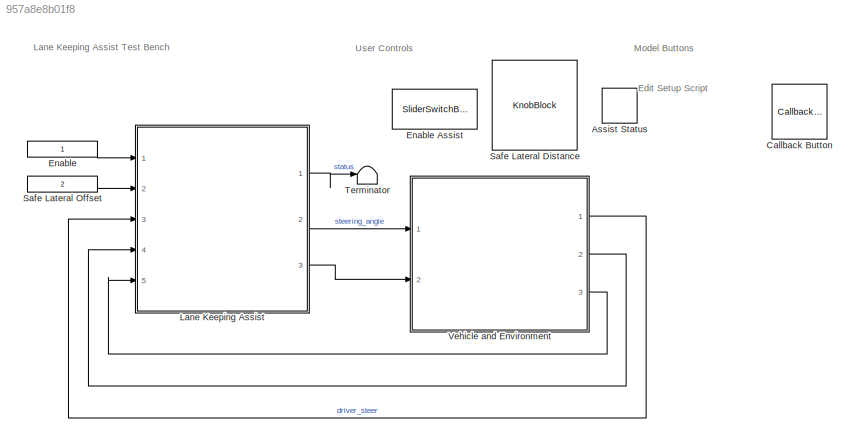
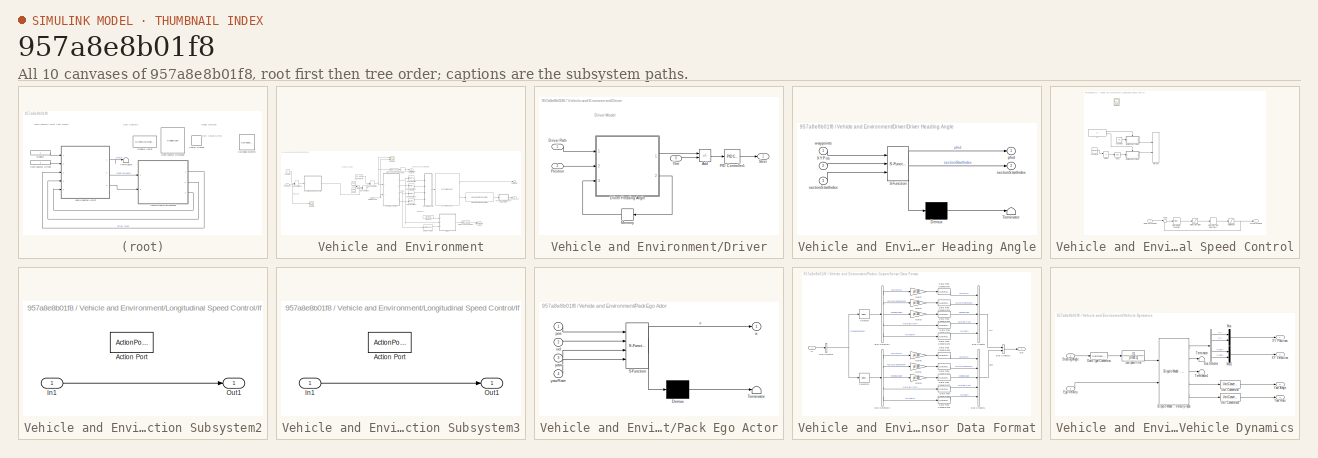
[diagram: thumbnail index - all 10 canvases of the model, root first then tree order]
MODEL slx_957a8e8b01f8
KIND model
CONFIG AbsTol = auto
CONFIG EnableMultiTasking = off
CONFIG FixedStep = auto
CONFIG MaxStep = auto
CONFIG MinStep = auto
CONFIG PostLoadFcn = helperLKASetUpVarying
CONFIG RelTol = 1e-3
CONFIG SampleTimeConstraint = Unconstrained
CONFIG SolverName = VariableStepAuto
CONFIG StartTime = 0.0
CONFIG StopTime = simStopTime
BLOCK [LampBlock] Assist Status
  LabelPosition = Hide
BLOCK [CallbackButton] Callback Button
  ButtonText = ?
  ClickFcn = exampleID = 'LaneKeepingAssistWithLaneDetectionExample';\nexampleName = 'lane-keeping-assist-with-lane-detection.html';\nif license('test','automated_driving_toolbox') && ~isempty(ver('driving'))\n    helpview('driving',exampleID);\nelseif license('test','MPC_Toolbox') && ~isempty(ver('mpc'))\n    helpview('mpc',exampleID);\nelse\n    web(fullfile('https://www.mathworks.com/help','driving','examples',exa...<+44ch>
BLOCK [Constant] Enable
  OutDataTypeStr = Inherit: Inherit via back propagation
BLOCK [SliderSwitchBlock] Enable Assist
  LabelPosition = Hide
BLOCK [ModelReference] Lane Keeping Assist
  CodeInterface = Top model
  ModelNameDialog = LKARefMdl.slx
  ModelReferenceVersion = 1.434
  Ports = [5, 3]
BLOCK [KnobBlock] Safe Lateral Distance
  LabelPosition = Hide
  ScaleMax = 2
  TickInterval = 0.5
BLOCK [Constant] Safe Lateral Offset
  OutDataTypeStr = Inherit: Inherit via back propagation
  Value = 2
BLOCK [Terminator] Terminator
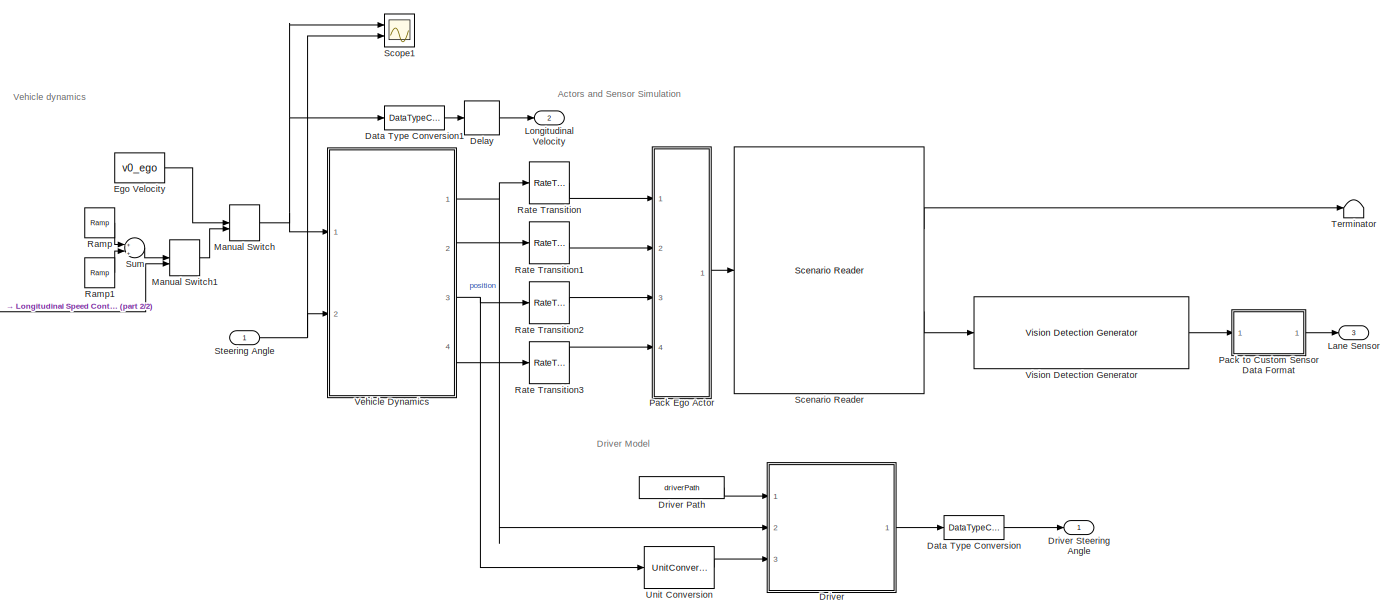
[diagram: Vehicle and Environment - part 1/2, most of the canvas]
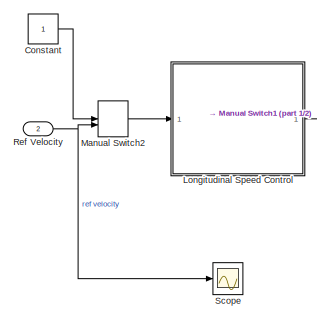
[diagram: Vehicle and Environment - part 2/2, middle left region]
BLOCK [SubSystem] Vehicle and Environment
  Ports = [2, 3]
  RequestExecContextInheritance = off
BLOCK [Constant] Vehicle and Environment/Constant
BLOCK [DataTypeConversion] Vehicle and Environment/Data Type Conversion
  RndMeth = Floor
  SaturateOnIntegerOverflow = off
BLOCK [DataTypeConversion] Vehicle and Environment/Data Type Conversion1
  RndMeth = Floor
  SaturateOnIntegerOverflow = off
BLOCK [Delay] Vehicle and Environment/Delay
  DelayLength = 1
  InputPortMap = u0
  Ports = [1, 1]
BLOCK [SubSystem] Vehicle and Environment/Driver
  Ports = [3, 1]
  RequestExecContextInheritance = off
BLOCK [Constant] Vehicle and Environment/Driver Path
  Value = driverPath
BLOCK [Outport] Vehicle and Environment/Driver Steering Angle
  VectorParamsAs1DForOutWhenUnconnected = off
BLOCK [Sum] Vehicle and Environment/Driver/Add
  IconShape = rectangular
  Inputs = +-
  Ports = [2, 1]
BLOCK [SubSystem] Vehicle and Environment/Driver/Driver Heading Angle
  ErrorFcn = Stateflow.Translate.translate
  PermitHierarchicalResolution = ExplicitOnly
  Ports = [3, 2]
  RequestExecContextInheritance = off
  SFBlockType = MATLAB Function
  TreatAsAtomicUnit = on
BLOCK [Demux] Vehicle and Environment/Driver/Driver Heading Angle/ Demux 
  Outputs = 1
  Ports = [1, 1]
BLOCK [S-Function] Vehicle and Environment/Driver/Driver Heading Angle/ SFunction 
  EnableBusSupport = on
  FunctionName = sf_sfun
  PortCounts = [3 3]
  Ports = [3, 3]
  SFcnIsStateOwnerBlock = off
  SFunctionDeploymentMode = off
  Tag = Stateflow S-Function 7
BLOCK [Terminator] Vehicle and Environment/Driver/Driver Heading Angle/ Terminator 
BLOCK [Inport] Vehicle and Environment/Driver/Driver Heading Angle/XYPos
  Port = 2
BLOCK [Outport] Vehicle and Environment/Driver/Driver Heading Angle/phid
  VectorParamsAs1DForOutWhenUnconnected = off
BLOCK [Outport] Vehicle and Environment/Driver/Driver Heading Angle/sectionStartIndex
  Port = 2
  VectorParamsAs1DForOutWhenUnconnected = off
BLOCK [Inport] Vehicle and Environment/Driver/Driver Heading Angle/sectionStartIndex 
  Port = 3
BLOCK [Inport] Vehicle and Environment/Driver/Driver Heading Angle/waypoints
BLOCK [Inport] Vehicle and Environment/Driver/Driver Path
  Unit = m
BLOCK [Memory] Vehicle and Environment/Driver/Memory
BLOCK [Reference] Vehicle and Environment/Driver/PID Controller1  REF=pid_lib/PID Controller
  Ports = [1, 1]
  SourceBlock = pid_lib/PID Controller
  SourceProductBaseCode = SL
  SourceType = PID 1dof
BLOCK [Inport] Vehicle and Environment/Driver/Position
  Port = 2
  Unit = m
BLOCK [Outport] Vehicle and Environment/Driver/Steer
  Unit = rad
  VectorParamsAs1DForOutWhenUnconnected = off
BLOCK [Inport] Vehicle and Environment/Driver/Yaw
  Port = 3
  Unit = rad
BLOCK [Constant] Vehicle and Environment/Ego Velocity
  Value = v0_ego
BLOCK [Outport] Vehicle and Environment/Lane Sensor
  Port = 3
  VectorParamsAs1DForOutWhenUnconnected = off
BLOCK [SubSystem] Vehicle and Environment/Longitudinal Speed Control
  Ports = [1, 1]
  RequestExecContextInheritance = off
BLOCK [Constant] Vehicle and Environment/Longitudinal Speed Control/Constant1
  Commented = on
  Value = 36
BLOCK [Constant] Vehicle and Environment/Longitudinal Speed Control/Constant3
  Commented = on
  Value = 9.81*0.4
BLOCK [Reference] Vehicle and Environment/Longitudinal Speed Control/Discrete PID Controller  REF=pid_lib/PID Controller
  Ports = [1, 1]
  SourceBlock = pid_lib/PID Controller
  SourceProductBaseCode = SL
  SourceType = PID 1dof
BLOCK [DiscreteIntegrator] Vehicle and Environment/Longitudinal Speed Control/Discrete-Time Integrator1
  ICPrevOutput = DiscIntNeverNeededParam
  ICPrevScaledInput = DiscIntNeverNeededParam
  InitialConditionSetting = Auto
  Ports = [1, 1]
  SampleTime = Ts
BLOCK [Product] Vehicle and Environment/Longitudinal Speed Control/Divide
  Commented = on
  Inputs = */
  Ports = [2, 1]
BLOCK [Outport] Vehicle and Environment/Longitudinal Speed Control/Forward velocity
BLOCK [SubSystem] Vehicle and Environment/Longitudinal Speed Control/If Action Subsystem2
  Commented = on
  Ports = [1, 1, 0, 0, 0, 0, 0, 1]
  RequestExecContextInheritance = off
  TreatAsAtomicUnit = on
BLOCK [ActionPort] Vehicle and Environment/Longitudinal Speed Control/If Action Subsystem2/Action Port
  ActionPortLabel = if(u1 < 0.003)
BLOCK [Inport] Vehicle and Environment/Longitudinal Speed Control/If Action Subsystem2/In1
BLOCK [Outport] Vehicle and Environment/Longitudinal Speed Control/If Action Subsystem2/Out1
BLOCK [SubSystem] Vehicle and Environment/Longitudinal Speed Control/If Action Subsystem3
  Commented = on
  Ports = [1, 1, 0, 0, 0, 0, 0, 1]
  RequestExecContextInheritance = off
  TreatAsAtomicUnit = on
BLOCK [ActionPort] Vehicle and Environment/Longitudinal Speed Control/If Action Subsystem3/Action Port
  ActionPortLabel = else
BLOCK [Inport] Vehicle and Environment/Longitudinal Speed Control/If Action Subsystem3/In1
BLOCK [Outport] Vehicle and Environment/Longitudinal Speed Control/If Action Subsystem3/Out1
BLOCK [If] Vehicle and Environment/Longitudinal Speed Control/If1
  Commented = on
  IfExpression = u1 < 0.003
  Ports = [1, 2]
BLOCK [Saturate] Vehicle and Environment/Longitudinal Speed Control/Limit Acceleration
  LowerLimit = -0.5*9.81
  UpperLimit = 0.5*9.81
BLOCK [Saturate] Vehicle and Environment/Longitudinal Speed Control/Limit Velocity
  LowerLimit = 0
  UpperLimit = 35
BLOCK [Merge] Vehicle and Environment/Longitudinal Speed Control/Merge1
  Commented = on
  Ports = [2, 1]
BLOCK [Inport] Vehicle and Environment/Longitudinal Speed Control/Reference Velocity
BLOCK [Scope] Vehicle and Environment/Longitudinal Speed Control/Scope1
  Commented = on
  Floating = off
  NumInputPorts = 2
  Ports = [2]
  ScopeSpecificationString = Simulink.scopes.TimeScopeBlockCfg('CurrentConfiguration', extmgr.ConfigurationSet(extmgr.Configuration('Core','General UI',true),extmgr.Configuration('Core','Source UI',true),extmgr.Configuration('Sources','WiredSimulink',true,'DataLoggingVariableName','ScopeData1'),extmgr.Configuration('Visuals','Time Domain',true,'SerializedDisplays',{struct('MinYLimReal','-0.125','MaxYLimReal','1.125','YLabelRe...<+1498ch>
BLOCK [Sqrt] Vehicle and Environment/Longitudinal Speed Control/Sqrt1
  Commented = on
BLOCK [Sum] Vehicle and Environment/Longitudinal Speed Control/Sum2
  Inputs = |+-
  Ports = [2, 1]
BLOCK [Outport] Vehicle and Environment/Longitudinal Velocity
  OutDataTypeStr = single
  Port = 2
  Unit = m/s
  VectorParamsAs1DForOutWhenUnconnected = off
BLOCK [ManualSwitch] Vehicle and Environment/Manual Switch
  CurrentSetting = 0
BLOCK [ManualSwitch] Vehicle and Environment/Manual Switch1
  CurrentSetting = 0
BLOCK [ManualSwitch] Vehicle and Environment/Manual Switch2
  CurrentSetting = 0
BLOCK [SubSystem] Vehicle and Environment/Pack Ego Actor
  ErrorFcn = Stateflow.Translate.translate
  PermitHierarchicalResolution = ExplicitOnly
  Ports = [4, 1]
  RequestExecContextInheritance = off
  SFBlockType = MATLAB Function
  TreatAsAtomicUnit = on
BLOCK [Demux] Vehicle and Environment/Pack Ego Actor/ Demux 
  Outputs = 1
  Ports = [1, 1]
BLOCK [S-Function] Vehicle and Environment/Pack Ego Actor/ SFunction 
  EnableBusSupport = on
  FunctionName = sf_sfun
  PortCounts = [4 2]
  Ports = [4, 2]
  SFcnIsStateOwnerBlock = off
  SFunctionDeploymentMode = off
  Tag = Stateflow S-Function 5
BLOCK [Terminator] Vehicle and Environment/Pack Ego Actor/ Terminator 
BLOCK [Outport] Vehicle and Environment/Pack Ego Actor/a
  VectorParamsAs1DForOutWhenUnconnected = off
BLOCK [Inport] Vehicle and Environment/Pack Ego Actor/pos
BLOCK [Inport] Vehicle and Environment/Pack Ego Actor/vel
  Port = 2
BLOCK [Inport] Vehicle and Environment/Pack Ego Actor/yaw
  Port = 3
BLOCK [Inport] Vehicle and Environment/Pack Ego Actor/yawRate
  Port = 4
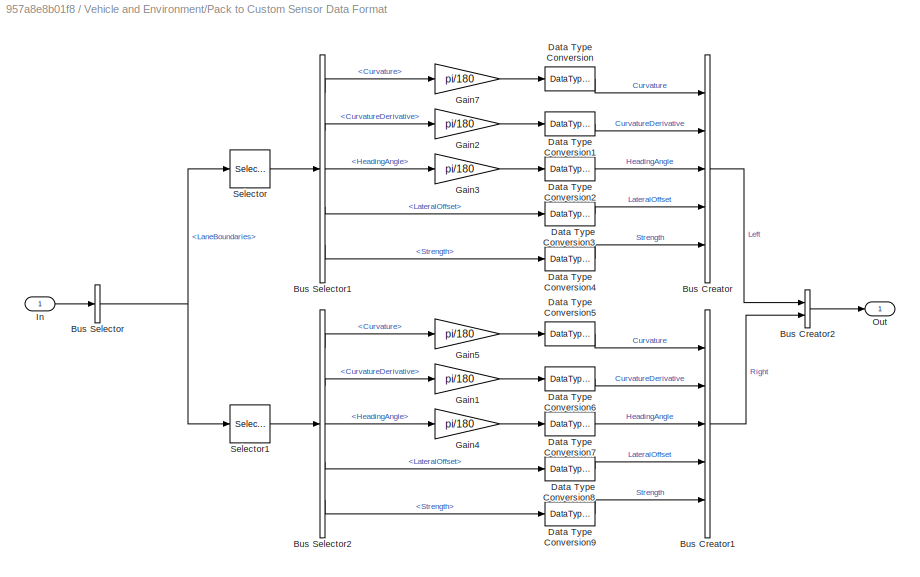
BLOCK [SubSystem] Vehicle and Environment/Pack to Custom Sensor Data Format
  Ports = [1, 1]
  RequestExecContextInheritance = off
BLOCK [BusCreator] Vehicle and Environment/Pack to Custom Sensor Data Format/Bus Creator
  DisplayOption = bar
  InheritFromInputs = on
  Inputs = Curvature,CurvatureDerivative,HeadingAngle,LateralOffset,Strength
  OutDataTypeStr = Bus: LaneSensorBoundaries
  Ports = [5, 1]
BLOCK [BusCreator] Vehicle and Environment/Pack to Custom Sensor Data Format/Bus Creator1
  DisplayOption = bar
  InheritFromInputs = on
  Inputs = Curvature,CurvatureDerivative,HeadingAngle,LateralOffset,Strength
  OutDataTypeStr = Bus: LaneSensorBoundaries
  Ports = [5, 1]
BLOCK [BusCreator] Vehicle and Environment/Pack to Custom Sensor Data Format/Bus Creator2
  DisplayOption = bar
  InheritFromInputs = on
  Inputs = Left,Right
  OutDataTypeStr = Bus: LaneSensor
  Ports = [2, 1]
BLOCK [BusSelector] Vehicle and Environment/Pack to Custom Sensor Data Format/Bus Selector
  OutputSignals = LaneBoundaries
  Ports = [1, 1]
BLOCK [BusSelector] Vehicle and Environment/Pack to Custom Sensor Data Format/Bus Selector1
  OutputSignals = Curvature,CurvatureDerivative,HeadingAngle,LateralOffset,Strength
  Ports = [1, 5]
BLOCK [BusSelector] Vehicle and Environment/Pack to Custom Sensor Data Format/Bus Selector2
  OutputSignals = Curvature,CurvatureDerivative,HeadingAngle,LateralOffset,Strength
  Ports = [1, 5]
BLOCK [DataTypeConversion] Vehicle and Environment/Pack to Custom Sensor Data Format/Data Type Conversion
  RndMeth = Floor
  SaturateOnIntegerOverflow = off
BLOCK [DataTypeConversion] Vehicle and Environment/Pack to Custom Sensor Data Format/Data Type Conversion1
  RndMeth = Floor
  SaturateOnIntegerOverflow = off
BLOCK [DataTypeConversion] Vehicle and Environment/Pack to Custom Sensor Data Format/Data Type Conversion2
  RndMeth = Floor
  SaturateOnIntegerOverflow = off
BLOCK [DataTypeConversion] Vehicle and Environment/Pack to Custom Sensor Data Format/Data Type Conversion3
  RndMeth = Floor
  SaturateOnIntegerOverflow = off
BLOCK [DataTypeConversion] Vehicle and Environment/Pack to Custom Sensor Data Format/Data Type Conversion4
  RndMeth = Floor
  SaturateOnIntegerOverflow = off
BLOCK [DataTypeConversion] Vehicle and Environment/Pack to Custom Sensor Data Format/Data Type Conversion5
  RndMeth = Floor
  SaturateOnIntegerOverflow = off
BLOCK [DataTypeConversion] Vehicle and Environment/Pack to Custom Sensor Data Format/Data Type Conversion6
  RndMeth = Floor
  SaturateOnIntegerOverflow = off
BLOCK [DataTypeConversion] Vehicle and Environment/Pack to Custom Sensor Data Format/Data Type Conversion7
  RndMeth = Floor
  SaturateOnIntegerOverflow = off
BLOCK [DataTypeConversion] Vehicle and Environment/Pack to Custom Sensor Data Format/Data Type Conversion8
  RndMeth = Floor
  SaturateOnIntegerOverflow = off
BLOCK [DataTypeConversion] Vehicle and Environment/Pack to Custom Sensor Data Format/Data Type Conversion9
  RndMeth = Floor
  SaturateOnIntegerOverflow = off
BLOCK [Gain] Vehicle and Environment/Pack to Custom Sensor Data Format/Gain1
  Gain = pi/180
BLOCK [Gain] Vehicle and Environment/Pack to Custom Sensor Data Format/Gain2
  Gain = pi/180
BLOCK [Gain] Vehicle and Environment/Pack to Custom Sensor Data Format/Gain3
  Gain = pi/180
BLOCK [Gain] Vehicle and Environment/Pack to Custom Sensor Data Format/Gain4
  Gain = pi/180
BLOCK [Gain] Vehicle and Environment/Pack to Custom Sensor Data Format/Gain5
  Gain = pi/180
BLOCK [Gain] Vehicle and Environment/Pack to Custom Sensor Data Format/Gain7
  Gain = pi/180
BLOCK [Inport] Vehicle and Environment/Pack to Custom Sensor Data Format/In
BLOCK [Outport] Vehicle and Environment/Pack to Custom Sensor Data Format/Out
  VectorParamsAs1DForOutWhenUnconnected = off
BLOCK [Selector] Vehicle and Environment/Pack to Custom Sensor Data Format/Selector
  IndexOptions = Index vector (dialog)
  Indices = 1
  InputPortWidth = 2
  OutputSizes = 1
  Ports = [1, 1]
BLOCK [Selector] Vehicle and Environment/Pack to Custom Sensor Data Format/Selector1
  IndexOptions = Index vector (dialog)
  Indices = 2
  InputPortWidth = 2
  OutputSizes = 1
  Ports = [1, 1]
BLOCK [Reference] Vehicle and Environment/Ramp  REF=simulink/Sources/Ramp
  Ports = [0, 1]
  SourceBlock = simulink/Sources/Ramp
  SourceProductBaseCode = SL
  SourceType = Ramp
BLOCK [Reference] Vehicle and Environment/Ramp1  REF=simulink/Sources/Ramp
  Ports = [0, 1]
  SourceBlock = simulink/Sources/Ramp
  SourceProductBaseCode = SL
  SourceType = Ramp
BLOCK [RateTransition] Vehicle and Environment/Rate Transition
  OutPortSampleTime = Ts
BLOCK [RateTransition] Vehicle and Environment/Rate Transition1
  OutPortSampleTime = Ts
BLOCK [RateTransition] Vehicle and Environment/Rate Transition2
  OutPortSampleTime = Ts
BLOCK [RateTransition] Vehicle and Environment/Rate Transition3
  OutPortSampleTime = Ts
BLOCK [Inport] Vehicle and Environment/Ref Velocity
  Port = 2
BLOCK [Reference] Vehicle and Environment/Scenario Reader  REF=drivingscenarioandsensors/Scenario Reader
  Ports = [1, 2]
  SourceBlock = drivingscenarioandsensors/Scenario Reader
  SourceProductBaseCode = DR
  SourceType = driving.scenario.internal.ScenarioReader
BLOCK [Scope] Vehicle and Environment/Scope
  Floating = off
  NumInputPorts = 1
  Ports = [1]
  ScopeSpecificationString = Simulink.scopes.TimeScopeBlockCfg('CurrentConfiguration', extmgr.ConfigurationSet(extmgr.Configuration('Core','General UI',true),extmgr.Configuration('Core','Source UI',true),extmgr.Configuration('Sources','WiredSimulink',true,'DataLoggingVariableName','ScopeData2'),extmgr.Configuration('Visuals','Time Domain',true,'SerializedDisplays',{struct('MinYLimReal','25.00000','MaxYLimReal','45.00000','YLa...<+1504ch>
BLOCK [Scope] Vehicle and Environment/Scope1
  Floating = off
  NumInputPorts = 2
  Ports = [2]
  ScopeSpecificationString = Simulink.scopes.TimeScopeBlockCfg('CurrentConfiguration', extmgr.ConfigurationSet(extmgr.Configuration('Core','General UI',true),extmgr.Configuration('Core','Source UI',true),extmgr.Configuration('Sources','WiredSimulink',true,'DataLoggingVariableName','ScopeData1'),extmgr.Configuration('Visuals','Time Domain',true,'SerializedDisplays',{struct('MinYLimReal','-1.00000','MaxYLimReal','1.00000','YLab...<+1416ch>
BLOCK [Inport] Vehicle and Environment/Steering Angle
  Unit = rad
BLOCK [Sum] Vehicle and Environment/Sum
  Inputs = +|+
  Ports = [2, 1]
BLOCK [Terminator] Vehicle and Environment/Terminator
BLOCK [UnitConversion] Vehicle and Environment/Unit Conversion
BLOCK [SubSystem] Vehicle and Environment/Vehicle Dynamics
  Ports = [2, 4]
  RequestExecContextInheritance = off
  VariantControl = VariantVDBS
BLOCK [Reference] Vehicle and Environment/Vehicle Dynamics/Bicycle Model - Velocity Input  REF=autolibshared/Bicycle Model - Velocity Input
  Ports = [2, 5]
  SourceBlock = autolibshared/Bicycle Model - Velocity Input
  SourceProductBaseCode = PW,MT,UV,VE,VP
  SourceType = Vehicle Body 3DOF Lateral
BLOCK [BusSelector] Vehicle and Environment/Vehicle Dynamics/Bus Selector
  OutputSignals = InertFrm.FrntAxl.Disp.X,InertFrm.FrntAxl.Disp.Y,InertFrm.FrntAxl.Vel.Xdot,InertFrm.FrntAxl.Vel.Ydot
  Ports = [1, 4]
BLOCK [DataTypeConversion] Vehicle and Environment/Vehicle Dynamics/Data Type Conversion
  RndMeth = Floor
  SaturateOnIntegerOverflow = off
BLOCK [Inport] Vehicle and Environment/Vehicle Dynamics/Ego Velocity
BLOCK [TransferFcn] Vehicle and Environment/Vehicle Dynamics/Low pass filter
  Denominator = [0.001 1]
BLOCK [Mux] Vehicle and Environment/Vehicle Dynamics/Mux
  DisplayOption = bar
  Inputs = 2
  Ports = [2, 1]
BLOCK [Mux] Vehicle and Environment/Vehicle Dynamics/Mux1
  DisplayOption = bar
  Inputs = 2
  Ports = [2, 1]
BLOCK [Inport] Vehicle and Environment/Vehicle Dynamics/Steering Angle
  Port = 2
BLOCK [Terminator] Vehicle and Environment/Vehicle Dynamics/Terminator
BLOCK [Terminator] Vehicle and Environment/Vehicle Dynamics/Terminator1
BLOCK [UnitConversion] Vehicle and Environment/Vehicle Dynamics/Unit Conversion
  OutputType = Inherit: Inherit via back propagation
BLOCK [UnitConversion] Vehicle and Environment/Vehicle Dynamics/Unit Conversion1
  OutputType = Inherit: Inherit via back propagation
BLOCK [Outport] Vehicle and Environment/Vehicle Dynamics/XY Positions
  Unit = m
  VectorParamsAs1DForOutWhenUnconnected = off
BLOCK [Outport] Vehicle and Environment/Vehicle Dynamics/XY Velocities
  Port = 2
  Unit = m/s
  VectorParamsAs1DForOutWhenUnconnected = off
BLOCK [Outport] Vehicle and Environment/Vehicle Dynamics/Yaw Angle
  Port = 3
  Unit = deg
  VectorParamsAs1DForOutWhenUnconnected = off
BLOCK [Outport] Vehicle and Environment/Vehicle Dynamics/Yaw Rate
  Port = 4
  Unit = degree/s
  VectorParamsAs1DForOutWhenUnconnected = off
BLOCK [Reference] Vehicle and Environment/Vision Detection Generator  REF=drivingscenarioandsensors/Vision Detection Generator
  Ports = [1, 1]
  SourceBlock = drivingscenarioandsensors/Vision Detection Generator
  SourceProductBaseCode = DR
  SourceType = visionDetectionGenerator
ANNOTATION (root): Edit Setup Script
ANNOTATION (root): Lane Keeping Assist Test Bench
ANNOTATION (root): Model Buttons
ANNOTATION (root): User Controls
ANNOTATION Vehicle and Environment: Actors and Sensor Simulation
ANNOTATION Vehicle and Environment: Driver Model
ANNOTATION Vehicle and Environment: Vehicle dynamics
ANNOTATION Vehicle and Environment/Driver: Driver Model
LINE Enable:1 -> Lane Keeping Assist:1
LINE Lane Keeping Assist:1 -> Terminator:1
LINE Lane Keeping Assist:2 -> Vehicle and Environment:1
LINE Lane Keeping Assist:3 -> Vehicle and Environment:2
LINE Safe Lateral Offset:1 -> Lane Keeping Assist:2
LINE Vehicle and Environment/Constant:1 -> Vehicle and Environment/Manual Switch2:1
LINE Vehicle and Environment/Data Type Conversion1:1 -> Vehicle and Environment/Delay:1
LINE Vehicle and Environment/Data Type Conversion:1 -> Vehicle and Environment/Driver Steering Angle:1
LINE Vehicle and Environment/Delay:1 -> Vehicle and Environment/Longitudinal Velocity:1
LINE Vehicle and Environment/Driver Path:1 -> Vehicle and Environment/Driver:1
LINE Vehicle and Environment/Driver/Add:1 -> Vehicle and Environment/Driver/PID Controller1:1
LINE Vehicle and Environment/Driver/Driver Heading Angle:1 -> Vehicle and Environment/Driver/Add:1
LINE Vehicle and Environment/Driver/Driver Heading Angle:2 -> Vehicle and Environment/Driver/Memory:1
LINE Vehicle and Environment/Driver/Driver Path:1 -> Vehicle and Environment/Driver/Driver Heading Angle:1
LINE Vehicle and Environment/Driver/Memory:1 -> Vehicle and Environment/Driver/Driver Heading Angle:3
LINE Vehicle and Environment/Driver/PID Controller1:1 -> Vehicle and Environment/Driver/Steer:1
LINE Vehicle and Environment/Driver/Position:1 -> Vehicle and Environment/Driver/Driver Heading Angle:2
LINE Vehicle and Environment/Driver/Yaw:1 -> Vehicle and Environment/Driver/Add:2
LINE Vehicle and Environment/Driver:1 -> Vehicle and Environment/Data Type Conversion:1
LINE Vehicle and Environment/Ego Velocity:1 -> Vehicle and Environment/Manual Switch:1
LINE Vehicle and Environment/Longitudinal Speed Control/Constant1:1 -> Vehicle and Environment/Longitudinal Speed Control/If Action Subsystem2:1
LINE Vehicle and Environment/Longitudinal Speed Control/Constant3:1 -> Vehicle and Environment/Longitudinal Speed Control/Divide:1
LINE Vehicle and Environment/Longitudinal Speed Control/Discrete PID Controller:1 -> Vehicle and Environment/Longitudinal Speed Control/Limit Acceleration:1
LINE Vehicle and Environment/Longitudinal Speed Control/Discrete-Time Integrator1:1 -> Vehicle and Environment/Longitudinal Speed Control/Limit Velocity:1
LINE Vehicle and Environment/Longitudinal Speed Control/Divide:1 -> Vehicle and Environment/Longitudinal Speed Control/Sqrt1:1
LINE Vehicle and Environment/Longitudinal Speed Control/If Action Subsystem2/In1:1 -> Vehicle and Environment/Longitudinal Speed Control/If Action Subsystem2/Out1:1
LINE Vehicle and Environment/Longitudinal Speed Control/If Action Subsystem2:1 -> Vehicle and Environment/Longitudinal Speed Control/Merge1:1
LINE Vehicle and Environment/Longitudinal Speed Control/If Action Subsystem3/In1:1 -> Vehicle and Environment/Longitudinal Speed Control/If Action Subsystem3/Out1:1
LINE Vehicle and Environment/Longitudinal Speed Control/If Action Subsystem3:1 -> Vehicle and Environment/Longitudinal Speed Control/Merge1:2
LINE Vehicle and Environment/Longitudinal Speed Control/If1:1 -> Vehicle and Environment/Longitudinal Speed Control/If Action Subsystem2:ifaction
LINE Vehicle and Environment/Longitudinal Speed Control/If1:2 -> Vehicle and Environment/Longitudinal Speed Control/If Action Subsystem3:ifaction
LINE Vehicle and Environment/Longitudinal Speed Control/Limit Acceleration:1 -> Vehicle and Environment/Longitudinal Speed Control/Discrete-Time Integrator1:1
NET Vehicle and Environment/Longitudinal Speed Control/Limit Velocity:1 -> Vehicle and Environment/Longitudinal Speed Control/Forward velocity:1, Vehicle and Environment/Longitudinal Speed Control/Sum2:2
LINE Vehicle and Environment/Longitudinal Speed Control/Reference Velocity:1 -> Vehicle and Environment/Longitudinal Speed Control/Sum2:1
LINE Vehicle and Environment/Longitudinal Speed Control/Sqrt1:1 -> Vehicle and Environment/Longitudinal Speed Control/If Action Subsystem3:1
LINE Vehicle and Environment/Longitudinal Speed Control/Sum2:1 -> Vehicle and Environment/Longitudinal Speed Control/Discrete PID Controller:1
LINE Vehicle and Environment/Longitudinal Speed Control:1 -> Vehicle and Environment/Manual Switch1:2
LINE Vehicle and Environment/Manual Switch1:1 -> Vehicle and Environment/Manual Switch:2
LINE Vehicle and Environment/Manual Switch2:1 -> Vehicle and Environment/Longitudinal Speed Control:1
NET Vehicle and Environment/Manual Switch:1 -> Vehicle and Environment/Data Type Conversion1:1, Vehicle and Environment/Scope1:1, Vehicle and Environment/Vehicle Dynamics:1
LINE Vehicle and Environment/Pack Ego Actor:1 -> Vehicle and Environment/Scenario Reader:1
LINE Vehicle and Environment/Pack to Custom Sensor Data Format/Bus Creator1:1 -> Vehicle and Environment/Pack to Custom Sensor Data Format/Bus Creator2:2
LINE Vehicle and Environment/Pack to Custom Sensor Data Format/Bus Creator2:1 -> Vehicle and Environment/Pack to Custom Sensor Data Format/Out:1
LINE Vehicle and Environment/Pack to Custom Sensor Data Format/Bus Creator:1 -> Vehicle and Environment/Pack to Custom Sensor Data Format/Bus Creator2:1
LINE Vehicle and Environment/Pack to Custom Sensor Data Format/Bus Selector1:1 -> Vehicle and Environment/Pack to Custom Sensor Data Format/Gain7:1
LINE Vehicle and Environment/Pack to Custom Sensor Data Format/Bus Selector1:2 -> Vehicle and Environment/Pack to Custom Sensor Data Format/Gain2:1
LINE Vehicle and Environment/Pack to Custom Sensor Data Format/Bus Selector1:3 -> Vehicle and Environment/Pack to Custom Sensor Data Format/Gain3:1
LINE Vehicle and Environment/Pack to Custom Sensor Data Format/Bus Selector1:4 -> Vehicle and Environment/Pack to Custom Sensor Data Format/Data Type Conversion3:1
LINE Vehicle and Environment/Pack to Custom Sensor Data Format/Bus Selector1:5 -> Vehicle and Environment/Pack to Custom Sensor Data Format/Data Type Conversion4:1
LINE Vehicle and Environment/Pack to Custom Sensor Data Format/Bus Selector2:1 -> Vehicle and Environment/Pack to Custom Sensor Data Format/Gain5:1
LINE Vehicle and Environment/Pack to Custom Sensor Data Format/Bus Selector2:2 -> Vehicle and Environment/Pack to Custom Sensor Data Format/Gain1:1
LINE Vehicle and Environment/Pack to Custom Sensor Data Format/Bus Selector2:3 -> Vehicle and Environment/Pack to Custom Sensor Data Format/Gain4:1
LINE Vehicle and Environment/Pack to Custom Sensor Data Format/Bus Selector2:4 -> Vehicle and Environment/Pack to Custom Sensor Data Format/Data Type Conversion8:1
LINE Vehicle and Environment/Pack to Custom Sensor Data Format/Bus Selector2:5 -> Vehicle and Environment/Pack to Custom Sensor Data Format/Data Type Conversion9:1
NET Vehicle and Environment/Pack to Custom Sensor Data Format/Bus Selector:1 -> Vehicle and Environment/Pack to Custom Sensor Data Format/Selector1:1, Vehicle and Environment/Pack to Custom Sensor Data Format/Selector:1
LINE Vehicle and Environment/Pack to Custom Sensor Data Format/Data Type Conversion1:1 -> Vehicle and Environment/Pack to Custom Sensor Data Format/Bus Creator:2
LINE Vehicle and Environment/Pack to Custom Sensor Data Format/Data Type Conversion2:1 -> Vehicle and Environment/Pack to Custom Sensor Data Format/Bus Creator:3
LINE Vehicle and Environment/Pack to Custom Sensor Data Format/Data Type Conversion3:1 -> Vehicle and Environment/Pack to Custom Sensor Data Format/Bus Creator:4
LINE Vehicle and Environment/Pack to Custom Sensor Data Format/Data Type Conversion4:1 -> Vehicle and Environment/Pack to Custom Sensor Data Format/Bus Creator:5
LINE Vehicle and Environment/Pack to Custom Sensor Data Format/Data Type Conversion5:1 -> Vehicle and Environment/Pack to Custom Sensor Data Format/Bus Creator1:1
LINE Vehicle and Environment/Pack to Custom Sensor Data Format/Data Type Conversion6:1 -> Vehicle and Environment/Pack to Custom Sensor Data Format/Bus Creator1:2
LINE Vehicle and Environment/Pack to Custom Sensor Data Format/Data Type Conversion7:1 -> Vehicle and Environment/Pack to Custom Sensor Data Format/Bus Creator1:3
LINE Vehicle and Environment/Pack to Custom Sensor Data Format/Data Type Conversion8:1 -> Vehicle and Environment/Pack to Custom Sensor Data Format/Bus Creator1:4
LINE Vehicle and Environment/Pack to Custom Sensor Data Format/Data Type Conversion9:1 -> Vehicle and Environment/Pack to Custom Sensor Data Format/Bus Creator1:5
LINE Vehicle and Environment/Pack to Custom Sensor Data Format/Data Type Conversion:1 -> Vehicle and Environment/Pack to Custom Sensor Data Format/Bus Creator:1
LINE Vehicle and Environment/Pack to Custom Sensor Data Format/Gain1:1 -> Vehicle and Environment/Pack to Custom Sensor Data Format/Data Type Conversion6:1
LINE Vehicle and Environment/Pack to Custom Sensor Data Format/Gain2:1 -> Vehicle and Environment/Pack to Custom Sensor Data Format/Data Type Conversion1:1
LINE Vehicle and Environment/Pack to Custom Sensor Data Format/Gain3:1 -> Vehicle and Environment/Pack to Custom Sensor Data Format/Data Type Conversion2:1
LINE Vehicle and Environment/Pack to Custom Sensor Data Format/Gain4:1 -> Vehicle and Environment/Pack to Custom Sensor Data Format/Data Type Conversion7:1
LINE Vehicle and Environment/Pack to Custom Sensor Data Format/Gain5:1 -> Vehicle and Environment/Pack to Custom Sensor Data Format/Data Type Conversion5:1
LINE Vehicle and Environment/Pack to Custom Sensor Data Format/Gain7:1 -> Vehicle and Environment/Pack to Custom Sensor Data Format/Data Type Conversion:1
LINE Vehicle and Environment/Pack to Custom Sensor Data Format/In:1 -> Vehicle and Environment/Pack to Custom Sensor Data Format/Bus Selector:1
LINE Vehicle and Environment/Pack to Custom Sensor Data Format/Selector1:1 -> Vehicle and Environment/Pack to Custom Sensor Data Format/Bus Selector2:1
LINE Vehicle and Environment/Pack to Custom Sensor Data Format/Selector:1 -> Vehicle and Environment/Pack to Custom Sensor Data Format/Bus Selector1:1
LINE Vehicle and Environment/Pack to Custom Sensor Data Format:1 -> Vehicle and Environment/Lane Sensor:1
LINE Vehicle and Environment/Ramp1:1 -> Vehicle and Environment/Sum:2
LINE Vehicle and Environment/Ramp:1 -> Vehicle and Environment/Sum:1
LINE Vehicle and Environment/Rate Transition1:1 -> Vehicle and Environment/Pack Ego Actor:2
LINE Vehicle and Environment/Rate Transition2:1 -> Vehicle and Environment/Pack Ego Actor:3
LINE Vehicle and Environment/Rate Transition3:1 -> Vehicle and Environment/Pack Ego Actor:4
LINE Vehicle and Environment/Rate Transition:1 -> Vehicle and Environment/Pack Ego Actor:1
NET Vehicle and Environment/Ref Velocity:1 -> Vehicle and Environment/Manual Switch2:2, Vehicle and Environment/Scope:1
LINE Vehicle and Environment/Scenario Reader:1 -> Vehicle and Environment/Terminator:1
LINE Vehicle and Environment/Scenario Reader:2 -> Vehicle and Environment/Vision Detection Generator:1
NET Vehicle and Environment/Steering Angle:1 -> Vehicle and Environment/Scope1:2, Vehicle and Environment/Vehicle Dynamics:2
LINE Vehicle and Environment/Sum:1 -> Vehicle and Environment/Manual Switch1:1
LINE Vehicle and Environment/Unit Conversion:1 -> Vehicle and Environment/Driver:3
LINE Vehicle and Environment/Vehicle Dynamics/Bicycle Model - Velocity Input:1 -> Vehicle and Environment/Vehicle Dynamics/Bus Selector:1
LINE Vehicle and Environment/Vehicle Dynamics/Bicycle Model - Velocity Input:2 -> Vehicle and Environment/Vehicle Dynamics/Terminator:1
LINE Vehicle and Environment/Vehicle Dynamics/Bicycle Model - Velocity Input:3 -> Vehicle and Environment/Vehicle Dynamics/Terminator1:1
LINE Vehicle and Environment/Vehicle Dynamics/Bicycle Model - Velocity Input:4 -> Vehicle and Environment/Vehicle Dynamics/Unit Conversion:1
LINE Vehicle and Environment/Vehicle Dynamics/Bicycle Model - Velocity Input:5 -> Vehicle and Environment/Vehicle Dynamics/Unit Conversion1:1
LINE Vehicle and Environment/Vehicle Dynamics/Bus Selector:1 -> Vehicle and Environment/Vehicle Dynamics/Mux:1
LINE Vehicle and Environment/Vehicle Dynamics/Bus Selector:2 -> Vehicle and Environment/Vehicle Dynamics/Mux:2
LINE Vehicle and Environment/Vehicle Dynamics/Bus Selector:3 -> Vehicle and Environment/Vehicle Dynamics/Mux1:1
LINE Vehicle and Environment/Vehicle Dynamics/Bus Selector:4 -> Vehicle and Environment/Vehicle Dynamics/Mux1:2
LINE Vehicle and Environment/Vehicle Dynamics/Data Type Conversion:1 -> Vehicle and Environment/Vehicle Dynamics/Low pass filter:1
LINE Vehicle and Environment/Vehicle Dynamics/Ego Velocity:1 -> Vehicle and Environment/Vehicle Dynamics/Bicycle Model - Velocity Input:2
LINE Vehicle and Environment/Vehicle Dynamics/Low pass filter:1 -> Vehicle and Environment/Vehicle Dynamics/Bicycle Model - Velocity Input:1
LINE Vehicle and Environment/Vehicle Dynamics/Mux1:1 -> Vehicle and Environment/Vehicle Dynamics/XY Velocities:1
LINE Vehicle and Environment/Vehicle Dynamics/Mux:1 -> Vehicle and Environment/Vehicle Dynamics/XY Positions:1
LINE Vehicle and Environment/Vehicle Dynamics/Steering Angle:1 -> Vehicle and Environment/Vehicle Dynamics/Data Type Conversion:1
LINE Vehicle and Environment/Vehicle Dynamics/Unit Conversion1:1 -> Vehicle and Environment/Vehicle Dynamics/Yaw Rate:1
LINE Vehicle and Environment/Vehicle Dynamics/Unit Conversion:1 -> Vehicle and Environment/Vehicle Dynamics/Yaw Angle:1
NET Vehicle and Environment/Vehicle Dynamics:1 -> Vehicle and Environment/Driver:2, Vehicle and Environment/Rate Transition:1
LINE Vehicle and Environment/Vehicle Dynamics:2 -> Vehicle and Environment/Rate Transition1:1
NET Vehicle and Environment/Vehicle Dynamics:3 -> Vehicle and Environment/Rate Transition2:1, Vehicle and Environment/Unit Conversion:1
LINE Vehicle and Environment/Vehicle Dynamics:4 -> Vehicle and Environment/Rate Transition3:1
LINE Vehicle and Environment/Vision Detection Generator:1 -> Vehicle and Environment/Pack to Custom Sensor Data Format:1
LINE Vehicle and Environment:1 -> Lane Keeping Assist:3
LINE Vehicle and Environment:2 -> Lane Keeping Assist:4
LINE Vehicle and Environment:3 -> Lane Keeping Assist:5
note: NET lines group one-source signal fan-out (src -> all destinations, sorted); 1:1 wires keep LINE
CHART Vehicle and Environment/Pack Ego Actor states=1 transitions=1
  STATE_LABEL 'eML_blk_kernel()'
  STATE_LABEL "SCRIPT:\nfunction a = packEgo(pos,vel,yaw,yawRate)\n% Pack ego information into a single ego actor bus\n%\n% Imoprtant note:\n% Output is a bus of type BusActorsActors. This is the same bus used by the\n% Scenario Reader to output an individual actor. If you change the\n% output bus name of Scenario Reader change the output bus name here\n% as well by clicking on 'Edit Data' in the menu above.\n\na = struct...<+200ch>"
CHART Vehicle and Environment/Driver/Driver Heading Angle states=1 transitions=1
  STATE_LABEL 'eML_blk_kernel()'
  STATE_LABEL 'SCRIPT:\nfunction [phid,sectionStartIndex] = driverHeadingAngle(waypoints, XYPos, sectionStartIndex)\n% DRIVERHEADINGANGLE\n% XYPos     = Current position of vehicle\n% waypoints = Desired path\n% phid      = Desired heading angle\n\nif sectionStartIndex < 1\n    sectionStartIndex = 1;\nend\n\nnumWaypoints = size(waypoints,1);\n\n% Distance between section start and end points\nDeltaXY = [waypoints(sectionStart...<+1775ch>'
CHART  states=0 transitions=0
CHART  states=0 transitions=0
